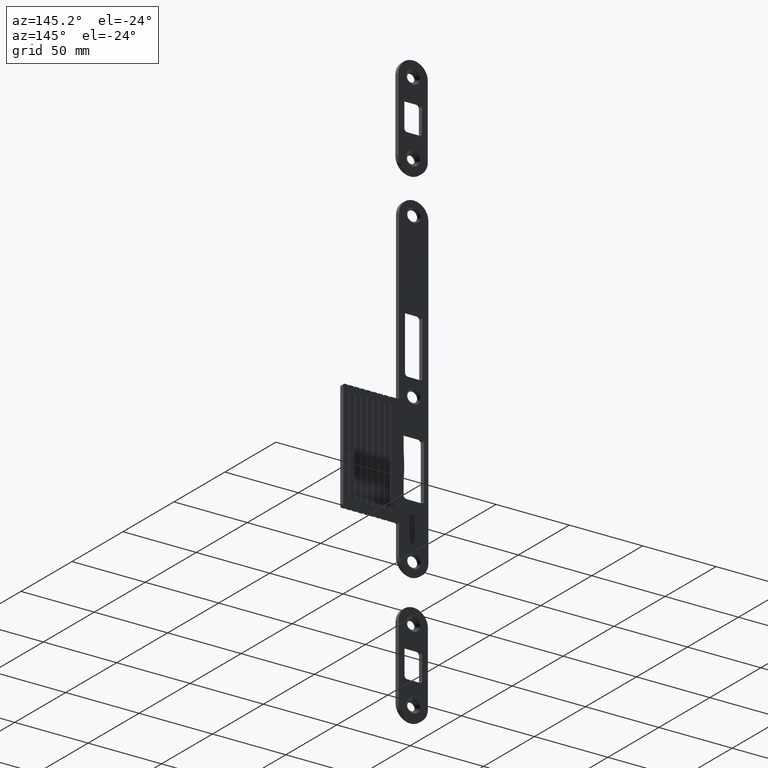
[diagram: clean part render]
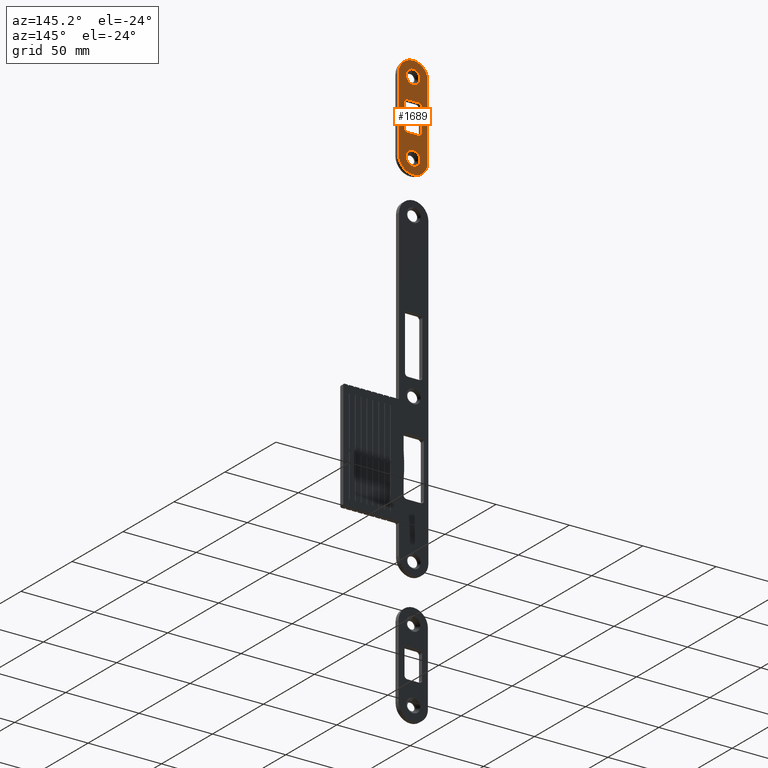
[diagram: same view with one face highlighted and labeled with its STEP entity id]
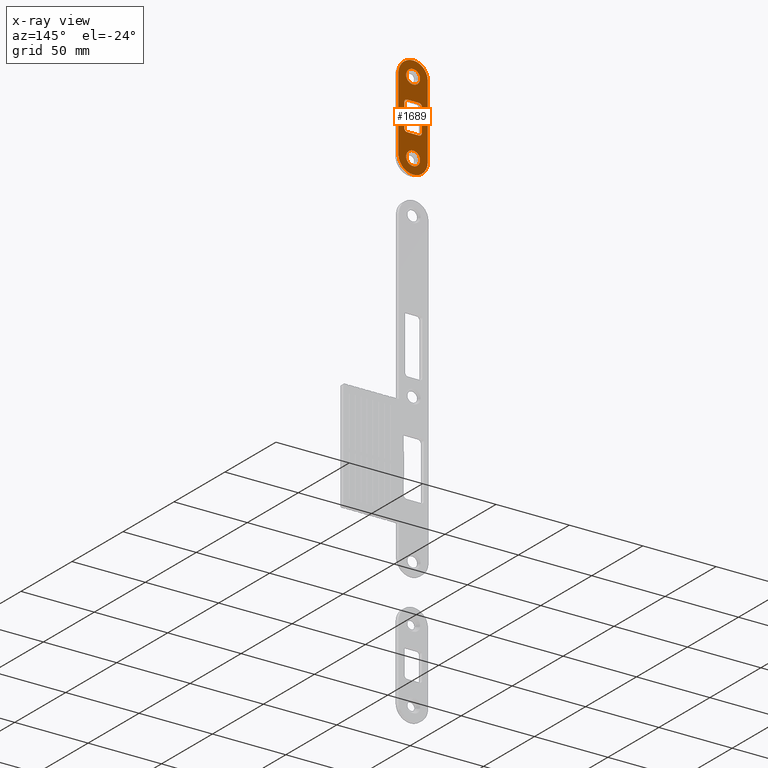
[diagram: x-ray of the same camera — body ghosted, the highlighted face saturated]
A machine part, auxiliary view. The second image highlights one B-rep face of the part: STEP entity #1689.
The next image is the same camera in x-ray: the body ghosted, the highlighted face saturated — about 0% of this face is hidden behind the body in this view.
In plain terms, the highlighted planar face has unit normal (0, 1, 0).
Its self-contained STEP definition (entity closure, byte-faithful):
#66 = FACE_BOUND ( 'NONE', #3005, .T. ) ;
#72 = DIRECTION ( 'NONE',  ( 0.000000000000000000, 0.000000000000000000, -1.000000000000000000 ) ) ;
#81 = VERTEX_POINT ( 'NONE', #702 ) ;
#106 = AXIS2_PLACEMENT_3D ( 'NONE', #3088, #1999, #2865 ) ;
#130 = VECTOR ( 'NONE', #1218, 1000.000000000000000 ) ;
#141 = EDGE_CURVE ( 'NONE', #3780, #7186, #4904, .T. ) ;
#259 = CARTESIAN_POINT ( 'NONE',  ( 5.785877657525414026E-15, 3.000000000000000000, 20.25000000000000000 ) ) ;
#332 = EDGE_CURVE ( 'NONE', #1042, #6369, #1103, .T. ) ;
#335 = CARTESIAN_POINT ( 'NONE',  ( 3.469446951953614189E-15, 3.000000000000000000, 35.00000000000000000 ) ) ;
#345 = DIRECTION ( 'NONE',  ( 0.000000000000000000, 1.000000000000000000, -0.000000000000000000 ) ) ;
#352 = CARTESIAN_POINT ( 'NONE',  ( 3.469446951953614189E-15, 3.000000000000000000, 25.00000000000000000 ) ) ;
#407 = CARTESIAN_POINT ( 'NONE',  ( -3.999999999999984457, 3.000000000000000000, 10.00000000000000000 ) ) ;
#413 = EDGE_CURVE ( 'NONE', #6936, #81, #6882, .T. ) ;
#563 = VECTOR ( 'NONE', #72, 1000.000000000000000 ) ;
#586 = LINE ( 'NONE', #3356, #130 ) ;
#591 = ORIENTED_EDGE ( 'NONE', *, *, #141, .F. ) ;
#593 = CIRCLE ( 'NONE', #4432, 10.00000000000000178 ) ;
#647 = CARTESIAN_POINT ( 'NONE',  ( 10.00000000000000533, 3.000000000000000000, -24.99999999999999289 ) ) ;
#684 = CARTESIAN_POINT ( 'NONE',  ( -6.000000000000001776, 3.000000000000000000, -7.999999999999986677 ) ) ;
#702 = CARTESIAN_POINT ( 'NONE',  ( 4.051154181548606931E-15, 3.000000000000000000, -29.75000000000000000 ) ) ;
#730 = CARTESIAN_POINT ( 'NONE',  ( 5.204170427930421283E-15, 3.000000000000000000, 25.00000000000000000 ) ) ;
#750 = CARTESIAN_POINT ( 'NONE',  ( 3.999999999999984457, 3.000000000000000000, -10.00000000000000000 ) ) ;
#835 = CIRCLE ( 'NONE', #6748, 2.000000000000000000 ) ;
#842 = CARTESIAN_POINT ( 'NONE',  ( 1.734723475976807094E-15, 3.000000000000000000, -34.99999999999999289 ) ) ;
#896 = EDGE_CURVE ( 'NONE', #81, #6936, #6431, .T. ) ;
#903 = EDGE_CURVE ( 'NONE', #7100, #3780, #1853, .T. ) ;
#1001 = DIRECTION ( 'NONE',  ( 0.000000000000000000, 1.000000000000000000, -0.000000000000000000 ) ) ;
#1042 = VERTEX_POINT ( 'NONE', #1379 ) ;
#1051 = AXIS2_PLACEMENT_3D ( 'NONE', #352, #2067, #2576 ) ;
#1095 = ORIENTED_EDGE ( 'NONE', *, *, #332, .T. ) ;
#1103 = LINE ( 'NONE', #6189, #1193 ) ;
#1131 = CARTESIAN_POINT ( 'NONE',  ( 10.00000000000000533, 3.000000000000000000, 35.00000000000000000 ) ) ;
#1193 = VECTOR ( 'NONE', #5538, 1000.000000000000000 ) ;
#1207 = CARTESIAN_POINT ( 'NONE',  ( 6.000000000000001776, 3.000000000000000000, 7.999999999999986677 ) ) ;
#1208 = EDGE_CURVE ( 'NONE', #5851, #7100, #2714, .T. ) ;
#1217 = VERTEX_POINT ( 'NONE', #6661 ) ;
#1218 = DIRECTION ( 'NONE',  ( -2.168404344971012566E-16, -0.000000000000000000, -1.000000000000000000 ) ) ;
#1235 = CARTESIAN_POINT ( 'NONE',  ( 3.469446951953614189E-15, 3.000000000000000000, -24.99999999999999645 ) ) ;
#1240 = DIRECTION ( 'NONE',  ( -0.000000000000000000, 1.000000000000000000, -0.000000000000000000 ) ) ;
#1379 = CARTESIAN_POINT ( 'NONE',  ( -10.00000000000000355, 3.000000000000000000, -24.99999999999999645 ) ) ;
#1408 = VERTEX_POINT ( 'NONE', #335 ) ;
#1595 = ORIENTED_EDGE ( 'NONE', *, *, #413, .F. ) ;
#1596 = EDGE_CURVE ( 'NONE', #6369, #1408, #3364, .T. ) ;
#1636 = AXIS2_PLACEMENT_3D ( 'NONE', #5333, #345, #5222 ) ;
#1689 = ADVANCED_FACE ( 'NONE', ( #66, #6972, #5637, #2542 ), #2329, .T. ) ;
#1715 = CARTESIAN_POINT ( 'NONE',  ( 10.00000000000000533, 3.000000000000000000, 25.00000000000000000 ) ) ;
#1813 = DIRECTION ( 'NONE',  ( 0.000000000000000000, 0.000000000000000000, 1.000000000000000000 ) ) ;
#1850 = ORIENTED_EDGE ( 'NONE', *, *, #1208, .F. ) ;
#1853 = LINE ( 'NONE', #2402, #4235 ) ;
#1916 = DIRECTION ( 'NONE',  ( 0.000000000000000000, 1.000000000000000000, 0.000000000000000000 ) ) ;
#1944 = DIRECTION ( 'NONE',  ( 1.626303258728259363E-16, 0.000000000000000000, 1.000000000000000000 ) ) ;
#1999 = DIRECTION ( 'NONE',  ( 0.000000000000000000, 1.000000000000000000, -0.000000000000000000 ) ) ;
#2015 = AXIS2_PLACEMENT_3D ( 'NONE', #6311, #1916, #4137 ) ;
#2067 = DIRECTION ( 'NONE',  ( 0.000000000000000000, 1.000000000000000000, -0.000000000000000000 ) ) ;
#2074 = ORIENTED_EDGE ( 'NONE', *, *, #5571, .F. ) ;
#2148 = DIRECTION ( 'NONE',  ( -1.000000000000000000, -0.000000000000000000, -0.000000000000000000 ) ) ;
#2285 = CARTESIAN_POINT ( 'NONE',  ( -9.999999999999996447, 3.000000000000000000, 25.00000000000000000 ) ) ;
#2329 = PLANE ( 'NONE',  #106 ) ;
#2359 = VECTOR ( 'NONE', #2148, 1000.000000000000000 ) ;
#2390 = DIRECTION ( 'NONE',  ( 0.000000000000000000, 0.000000000000000000, 1.000000000000000000 ) ) ;
#2402 = CARTESIAN_POINT ( 'NONE',  ( -3.999999999999984457, 3.000000000000000000, 10.00000000000000000 ) ) ;
#2458 = VERTEX_POINT ( 'NONE', #1715 ) ;
#2467 = CIRCLE ( 'NONE', #1636, 2.000000000000000000 ) ;
#2531 = CARTESIAN_POINT ( 'NONE',  ( 3.999999999999988010, 3.000000000000000000, 10.00000000000000000 ) ) ;
#2542 = FACE_BOUND ( 'NONE', #3119, .T. ) ;
#2572 = AXIS2_PLACEMENT_3D ( 'NONE', #6347, #6237, #2390 ) ;
#2576 = DIRECTION ( 'NONE',  ( 0.000000000000000000, 0.000000000000000000, 1.000000000000000000 ) ) ;
#2714 = CIRCLE ( 'NONE', #6321, 2.000000000000000000 ) ;
#2857 = EDGE_CURVE ( 'NONE', #6295, #3016, #6594, .T. ) ;
#2858 = VERTEX_POINT ( 'NONE', #684 ) ;
#2865 = DIRECTION ( 'NONE',  ( 0.000000000000000000, 0.000000000000000000, 1.000000000000000000 ) ) ;
#2902 = DIRECTION ( 'NONE',  ( 1.000000000000000000, 0.000000000000000000, 0.000000000000000000 ) ) ;
#2908 = CIRCLE ( 'NONE', #1051, 10.00000000000000178 ) ;
#2952 = ORIENTED_EDGE ( 'NONE', *, *, #6445, .T. ) ;
#2975 = DIRECTION ( 'NONE',  ( 0.000000000000000000, 1.000000000000000000, -0.000000000000000000 ) ) ;
#2989 = ORIENTED_EDGE ( 'NONE', *, *, #5400, .T. ) ;
#3005 = EDGE_LOOP ( 'NONE', ( #1595, #6225 ) ) ;
#3010 = CARTESIAN_POINT ( 'NONE',  ( -1.982541115402064913E-15, 3.000000000000000000, -24.99999999999999645 ) ) ;
#3016 = VERTEX_POINT ( 'NONE', #259 ) ;
#3082 = ORIENTED_EDGE ( 'NONE', *, *, #4805, .F. ) ;
#3088 = CARTESIAN_POINT ( 'NONE',  ( 0.000000000000000000, 3.000000000000000000, 0.000000000000000000 ) ) ;
#3119 = EDGE_LOOP ( 'NONE', ( #6692, #1850, #2074, #7032, #4740, #3368, #6052, #591 ) ) ;
#3132 = LINE ( 'NONE', #5317, #2359 ) ;
#3149 = CARTESIAN_POINT ( 'NONE',  ( 3.469446951953614189E-15, 3.000000000000000000, -24.99999999999999645 ) ) ;
#3165 = VECTOR ( 'NONE', #1944, 1000.000000000000000 ) ;
#3185 = AXIS2_PLACEMENT_3D ( 'NONE', #1235, #4652, #4614 ) ;
#3317 = DIRECTION ( 'NONE',  ( -0.000000000000000000, 1.000000000000000000, -0.000000000000000000 ) ) ;
#3348 = DIRECTION ( 'NONE',  ( 0.000000000000000000, 0.000000000000000000, 1.000000000000000000 ) ) ;
#3352 = DIRECTION ( 'NONE',  ( 0.000000000000000000, 0.000000000000000000, 1.000000000000000000 ) ) ;
#3356 = CARTESIAN_POINT ( 'NONE',  ( 5.999999999999998224, 3.000000000000000000, -7.999999999999986677 ) ) ;
#3364 = CIRCLE ( 'NONE', #6607, 10.00000000000000178 ) ;
#3368 = ORIENTED_EDGE ( 'NONE', *, *, #5184, .F. ) ;
#3588 = AXIS2_PLACEMENT_3D ( 'NONE', #730, #1240, #3969 ) ;
#3734 = ORIENTED_EDGE ( 'NONE', *, *, #3954, .T. ) ;
#3757 = AXIS2_PLACEMENT_3D ( 'NONE', #3869, #3317, #3348 ) ;
#3780 = VERTEX_POINT ( 'NONE', #2531 ) ;
#3869 = CARTESIAN_POINT ( 'NONE',  ( 3.469446951953614189E-15, 3.000000000000000000, -24.99999999999999645 ) ) ;
#3890 = CARTESIAN_POINT ( 'NONE',  ( 5.204170427930421283E-15, 3.000000000000000000, 29.75000000000000355 ) ) ;
#3954 = EDGE_CURVE ( 'NONE', #2458, #5884, #4406, .T. ) ;
#3965 = CIRCLE ( 'NONE', #6990, 10.00000000000000178 ) ;
#3969 = DIRECTION ( 'NONE',  ( 0.000000000000000000, 0.000000000000000000, 1.000000000000000000 ) ) ;
#4131 = LINE ( 'NONE', #5833, #3165 ) ;
#4137 = DIRECTION ( 'NONE',  ( 0.000000000000000000, 0.000000000000000000, 1.000000000000000000 ) ) ;
#4178 = ORIENTED_EDGE ( 'NONE', *, *, #1596, .T. ) ;
#4182 = ORIENTED_EDGE ( 'NONE', *, *, #4498, .T. ) ;
#4235 = VECTOR ( 'NONE', #2902, 1000.000000000000000 ) ;
#4245 = CARTESIAN_POINT ( 'NONE',  ( 3.469446951953614189E-15, 3.000000000000000000, -20.24999999999999645 ) ) ;
#4351 = CARTESIAN_POINT ( 'NONE',  ( -3.999999999999998224, 3.000000000000000000, 8.000000000000000000 ) ) ;
#4352 = DIRECTION ( 'NONE',  ( 0.000000000000000000, 0.000000000000000000, 1.000000000000000000 ) ) ;
#4406 = LINE ( 'NONE', #1131, #563 ) ;
#4432 = AXIS2_PLACEMENT_3D ( 'NONE', #3149, #1001, #4352 ) ;
#4436 = CARTESIAN_POINT ( 'NONE',  ( 5.204170427930421283E-15, 3.000000000000000000, 25.00000000000000000 ) ) ;
#4455 = EDGE_LOOP ( 'NONE', ( #7154, #3082 ) ) ;
#4498 = EDGE_CURVE ( 'NONE', #1408, #2458, #2908, .T. ) ;
#4614 = DIRECTION ( 'NONE',  ( 0.000000000000000000, 0.000000000000000000, 1.000000000000000000 ) ) ;
#4652 = DIRECTION ( 'NONE',  ( -0.000000000000000000, 1.000000000000000000, -0.000000000000000000 ) ) ;
#4740 = ORIENTED_EDGE ( 'NONE', *, *, #6123, .F. ) ;
#4805 = EDGE_CURVE ( 'NONE', #3016, #6295, #6398, .T. ) ;
#4904 = CIRCLE ( 'NONE', #2015, 2.000000000000000000 ) ;
#4915 = CARTESIAN_POINT ( 'NONE',  ( -5.999999999999998224, 3.000000000000000000, 7.999999999999986677 ) ) ;
#5033 = CARTESIAN_POINT ( 'NONE',  ( -3.999999999999986233, 3.000000000000000000, -10.00000000000000000 ) ) ;
#5116 = CARTESIAN_POINT ( 'NONE',  ( -4.000000000000000888, 3.000000000000000000, -8.000000000000000000 ) ) ;
#5184 = EDGE_CURVE ( 'NONE', #1217, #5287, #2467, .T. ) ;
#5222 = DIRECTION ( 'NONE',  ( 0.000000000000000000, 0.000000000000000000, -1.000000000000000000 ) ) ;
#5287 = VERTEX_POINT ( 'NONE', #750 ) ;
#5317 = CARTESIAN_POINT ( 'NONE',  ( -3.999999999999986233, 3.000000000000000000, -10.00000000000000000 ) ) ;
#5333 = CARTESIAN_POINT ( 'NONE',  ( 3.999999999999998224, 3.000000000000000000, -8.000000000000000000 ) ) ;
#5400 = EDGE_CURVE ( 'NONE', #5884, #6072, #593, .T. ) ;
#5538 = DIRECTION ( 'NONE',  ( 1.486905836551548832E-16, 0.000000000000000000, 1.000000000000000000 ) ) ;
#5571 = EDGE_CURVE ( 'NONE', #2858, #5851, #4131, .T. ) ;
#5637 = FACE_OUTER_BOUND ( 'NONE', #5981, .T. ) ;
#5741 = DIRECTION ( 'NONE',  ( 0.000000000000000000, 0.000000000000000000, 1.000000000000000000 ) ) ;
#5833 = CARTESIAN_POINT ( 'NONE',  ( -6.000000000000000888, 3.000000000000000000, -7.999999999999986677 ) ) ;
#5851 = VERTEX_POINT ( 'NONE', #4915 ) ;
#5884 = VERTEX_POINT ( 'NONE', #647 ) ;
#5981 = EDGE_LOOP ( 'NONE', ( #3734, #2989, #2952, #1095, #4178, #4182 ) ) ;
#6052 = ORIENTED_EDGE ( 'NONE', *, *, #6693, .F. ) ;
#6072 = VERTEX_POINT ( 'NONE', #842 ) ;
#6123 = EDGE_CURVE ( 'NONE', #5287, #6733, #3132, .T. ) ;
#6189 = CARTESIAN_POINT ( 'NONE',  ( -10.00000000000000533, 3.000000000000000000, -35.00000000000000000 ) ) ;
#6225 = ORIENTED_EDGE ( 'NONE', *, *, #896, .F. ) ;
#6237 = DIRECTION ( 'NONE',  ( -0.000000000000000000, 1.000000000000000000, -0.000000000000000000 ) ) ;
#6295 = VERTEX_POINT ( 'NONE', #3890 ) ;
#6311 = CARTESIAN_POINT ( 'NONE',  ( 4.000000000000001776, 3.000000000000000000, 8.000000000000000000 ) ) ;
#6321 = AXIS2_PLACEMENT_3D ( 'NONE', #4351, #6694, #3352 ) ;
#6347 = CARTESIAN_POINT ( 'NONE',  ( 5.204170427930421283E-15, 3.000000000000000000, 25.00000000000000000 ) ) ;
#6369 = VERTEX_POINT ( 'NONE', #2285 ) ;
#6398 = CIRCLE ( 'NONE', #2572, 4.750000000000000888 ) ;
#6431 = CIRCLE ( 'NONE', #3185, 4.750000000000000888 ) ;
#6445 = EDGE_CURVE ( 'NONE', #6072, #1042, #3965, .T. ) ;
#6480 = EDGE_CURVE ( 'NONE', #6733, #2858, #835, .T. ) ;
#6594 = CIRCLE ( 'NONE', #3588, 4.750000000000000888 ) ;
#6607 = AXIS2_PLACEMENT_3D ( 'NONE', #4436, #7136, #6651 ) ;
#6651 = DIRECTION ( 'NONE',  ( 0.000000000000000000, 0.000000000000000000, 1.000000000000000000 ) ) ;
#6661 = CARTESIAN_POINT ( 'NONE',  ( 5.999999999999998224, 3.000000000000000000, -7.999999999999986677 ) ) ;
#6692 = ORIENTED_EDGE ( 'NONE', *, *, #903, .F. ) ;
#6693 = EDGE_CURVE ( 'NONE', #7186, #1217, #586, .T. ) ;
#6694 = DIRECTION ( 'NONE',  ( 0.000000000000000000, 1.000000000000000000, 0.000000000000000000 ) ) ;
#6733 = VERTEX_POINT ( 'NONE', #5033 ) ;
#6748 = AXIS2_PLACEMENT_3D ( 'NONE', #5116, #6825, #5741 ) ;
#6825 = DIRECTION ( 'NONE',  ( 0.000000000000000000, 1.000000000000000000, 0.000000000000000000 ) ) ;
#6882 = CIRCLE ( 'NONE', #3757, 4.750000000000000888 ) ;
#6936 = VERTEX_POINT ( 'NONE', #4245 ) ;
#6972 = FACE_BOUND ( 'NONE', #4455, .T. ) ;
#6990 = AXIS2_PLACEMENT_3D ( 'NONE', #3010, #2975, #1813 ) ;
#7032 = ORIENTED_EDGE ( 'NONE', *, *, #6480, .F. ) ;
#7100 = VERTEX_POINT ( 'NONE', #407 ) ;
#7136 = DIRECTION ( 'NONE',  ( 0.000000000000000000, 1.000000000000000000, -0.000000000000000000 ) ) ;
#7154 = ORIENTED_EDGE ( 'NONE', *, *, #2857, .F. ) ;
#7186 = VERTEX_POINT ( 'NONE', #1207 ) ;